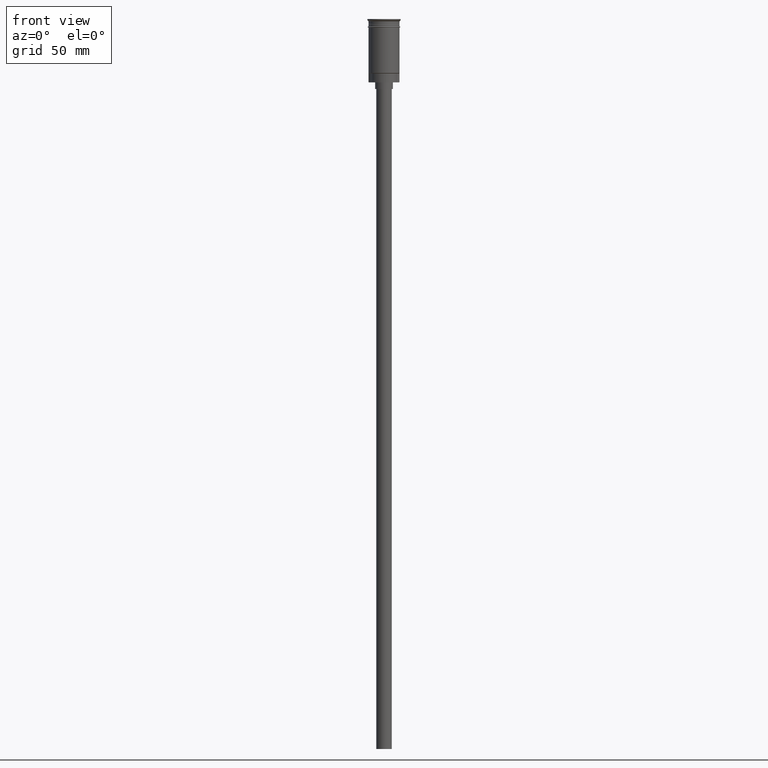
[diagram: clean part render]
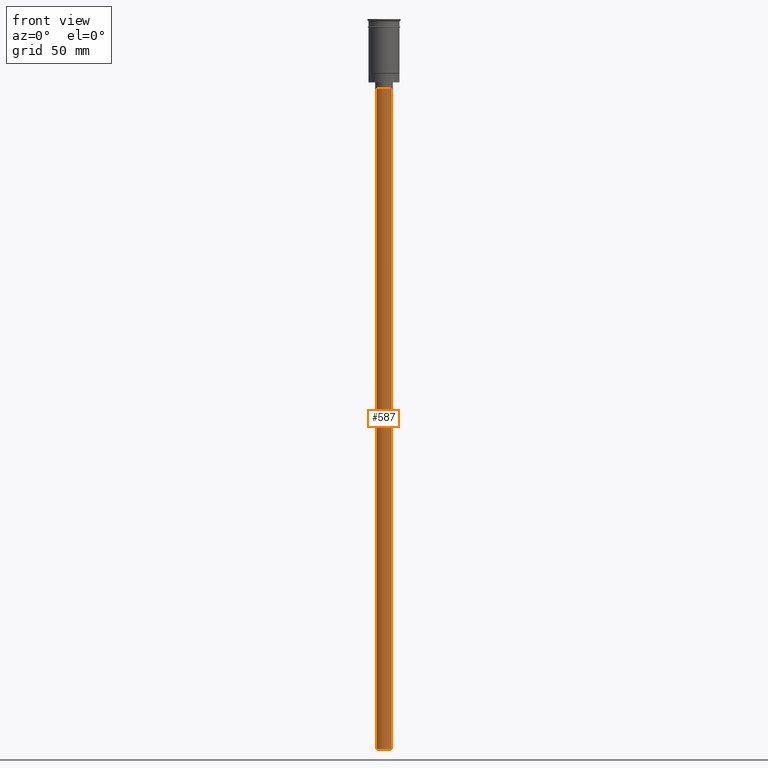
[diagram: same view with one face highlighted and labeled with its STEP entity id]
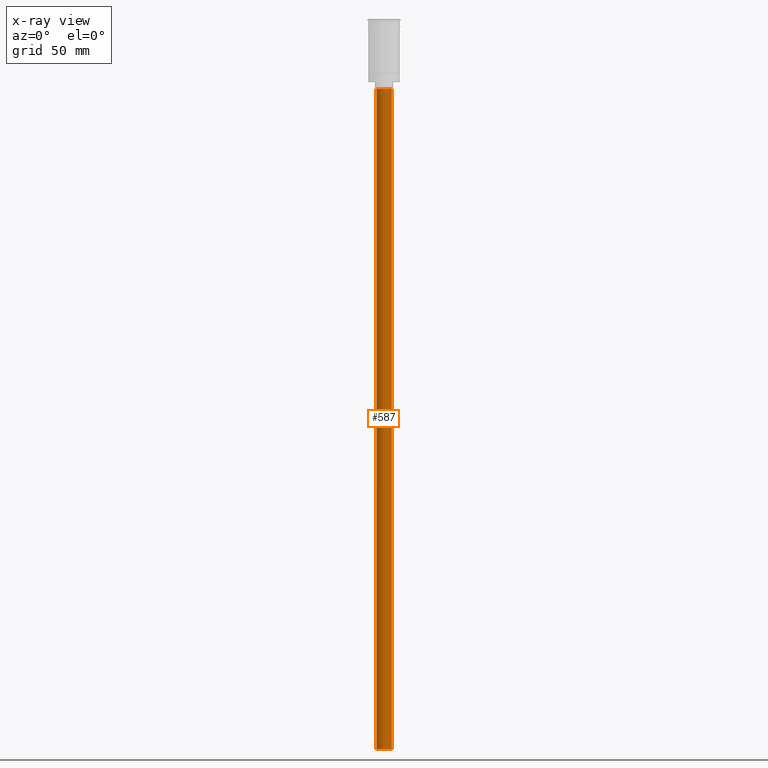
[diagram: x-ray of the same camera — body ghosted, the highlighted face saturated]
A machine part, front view. The second image highlights one B-rep face of the part: STEP entity #587.
The next image is the same camera in x-ray: the body ghosted, the highlighted face saturated — about 0% of this face is hidden behind the body in this view.
In plain terms, the highlighted cylindrical surface (edge-blend (fillet) strip) has radius 3.5 mm, axis along (-0, -0, 1).
Its self-contained STEP definition (entity closure, byte-faithful):
#2 = AXIS2_PLACEMENT_3D ( 'NONE', #398, #279, #900 ) ;
#65 = VERTEX_POINT ( 'NONE', #1386 ) ;
#125 = EDGE_CURVE ( 'NONE', #1285, #1055, #208, .T. ) ;
#160 = ORIENTED_EDGE ( 'NONE', *, *, #487, .F. ) ;
#171 = DIRECTION ( 'NONE',  ( 1.000000000000000000, 0.000000000000000000, 0.000000000000000000 ) ) ;
#178 = CYLINDRICAL_SURFACE ( 'NONE', #1597, 3.500000000000000444 ) ;
#208 = CIRCLE ( 'NONE', #532, 3.500000000000000444 ) ;
#276 = VERTEX_POINT ( 'NONE', #1228 ) ;
#279 = DIRECTION ( 'NONE',  ( 0.000000000000000000, 0.000000000000000000, -1.000000000000000000 ) ) ;
#294 = CARTESIAN_POINT ( 'NONE',  ( 0.000000000000000000, 0.000000000000000000, -328.5000000000000000 ) ) ;
#301 = DIRECTION ( 'NONE',  ( -0.000000000000000000, -0.000000000000000000, 1.000000000000000000 ) ) ;
#302 = DIRECTION ( 'NONE',  ( -0.000000000000000000, -0.000000000000000000, 1.000000000000000000 ) ) ;
#367 = VECTOR ( 'NONE', #301, 1000.000000000000000 ) ;
#398 = CARTESIAN_POINT ( 'NONE',  ( 0.000000000000000000, 0.000000000000000000, -328.5000000000000000 ) ) ;
#411 = LINE ( 'NONE', #1428, #1149 ) ;
#414 = CARTESIAN_POINT ( 'NONE',  ( 0.000000000000000000, 0.000000000000000000, -31.50000000000000000 ) ) ;
#487 = EDGE_CURVE ( 'NONE', #65, #276, #1396, .T. ) ;
#531 = CARTESIAN_POINT ( 'NONE',  ( -3.500000000000000444, 4.286263797015737088E-16, -31.50000000000000000 ) ) ;
#532 = AXIS2_PLACEMENT_3D ( 'NONE', #414, #937, #929 ) ;
#587 = ADVANCED_FACE ( 'NONE', ( #1408 ), #178, .T. ) ;
#641 = EDGE_LOOP ( 'NONE', ( #1306, #160, #706, #1108 ) ) ;
#682 = CARTESIAN_POINT ( 'NONE',  ( 3.500000000000000444, 0.000000000000000000, -328.5000000000000000 ) ) ;
#706 = ORIENTED_EDGE ( 'NONE', *, *, #1502, .T. ) ;
#786 = DIRECTION ( 'NONE',  ( -0.000000000000000000, -0.000000000000000000, 1.000000000000000000 ) ) ;
#900 = DIRECTION ( 'NONE',  ( -1.000000000000000000, 0.000000000000000000, 0.000000000000000000 ) ) ;
#920 = LINE ( 'NONE', #682, #367 ) ;
#929 = DIRECTION ( 'NONE',  ( -1.000000000000000000, 0.000000000000000000, 0.000000000000000000 ) ) ;
#937 = DIRECTION ( 'NONE',  ( 0.000000000000000000, 0.000000000000000000, -1.000000000000000000 ) ) ;
#1055 = VERTEX_POINT ( 'NONE', #531 ) ;
#1108 = ORIENTED_EDGE ( 'NONE', *, *, #125, .T. ) ;
#1149 = VECTOR ( 'NONE', #786, 1000.000000000000000 ) ;
#1228 = CARTESIAN_POINT ( 'NONE',  ( -3.500000000000000444, 4.286263797015737088E-16, -328.5000000000000000 ) ) ;
#1285 = VERTEX_POINT ( 'NONE', #1360 ) ;
#1306 = ORIENTED_EDGE ( 'NONE', *, *, #1431, .F. ) ;
#1360 = CARTESIAN_POINT ( 'NONE',  ( 3.500000000000000444, 0.000000000000000000, -31.50000000000000000 ) ) ;
#1386 = CARTESIAN_POINT ( 'NONE',  ( 3.500000000000000444, 0.000000000000000000, -328.5000000000000000 ) ) ;
#1396 = CIRCLE ( 'NONE', #2, 3.500000000000000444 ) ;
#1408 = FACE_OUTER_BOUND ( 'NONE', #641, .T. ) ;
#1428 = CARTESIAN_POINT ( 'NONE',  ( -3.500000000000000444, 4.286263797015737088E-16, -328.5000000000000000 ) ) ;
#1431 = EDGE_CURVE ( 'NONE', #276, #1055, #411, .T. ) ;
#1502 = EDGE_CURVE ( 'NONE', #65, #1285, #920, .T. ) ;
#1597 = AXIS2_PLACEMENT_3D ( 'NONE', #294, #302, #171 ) ;